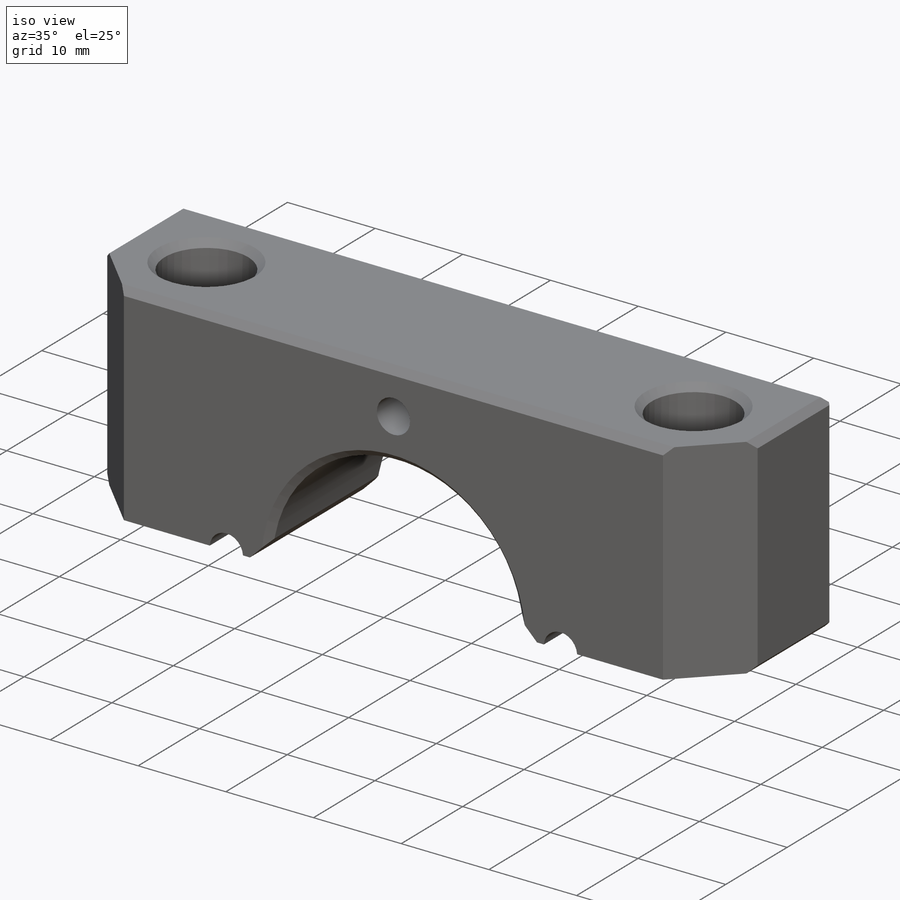
[diagram: iso view]
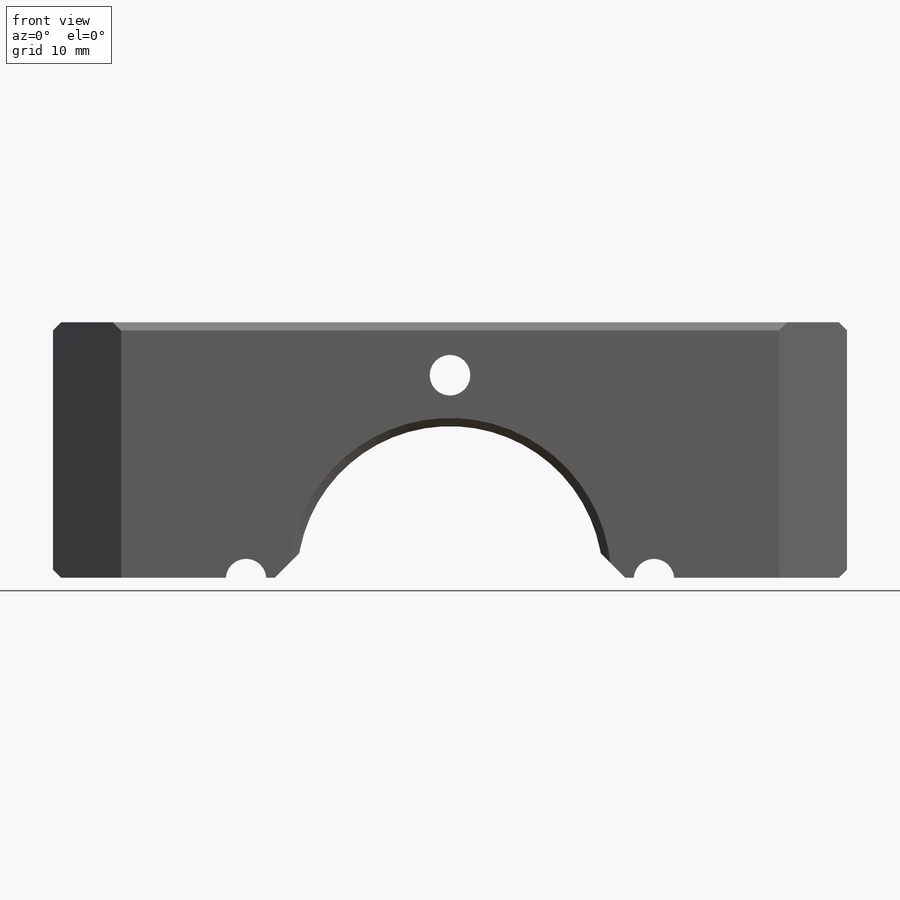
[diagram: front view]
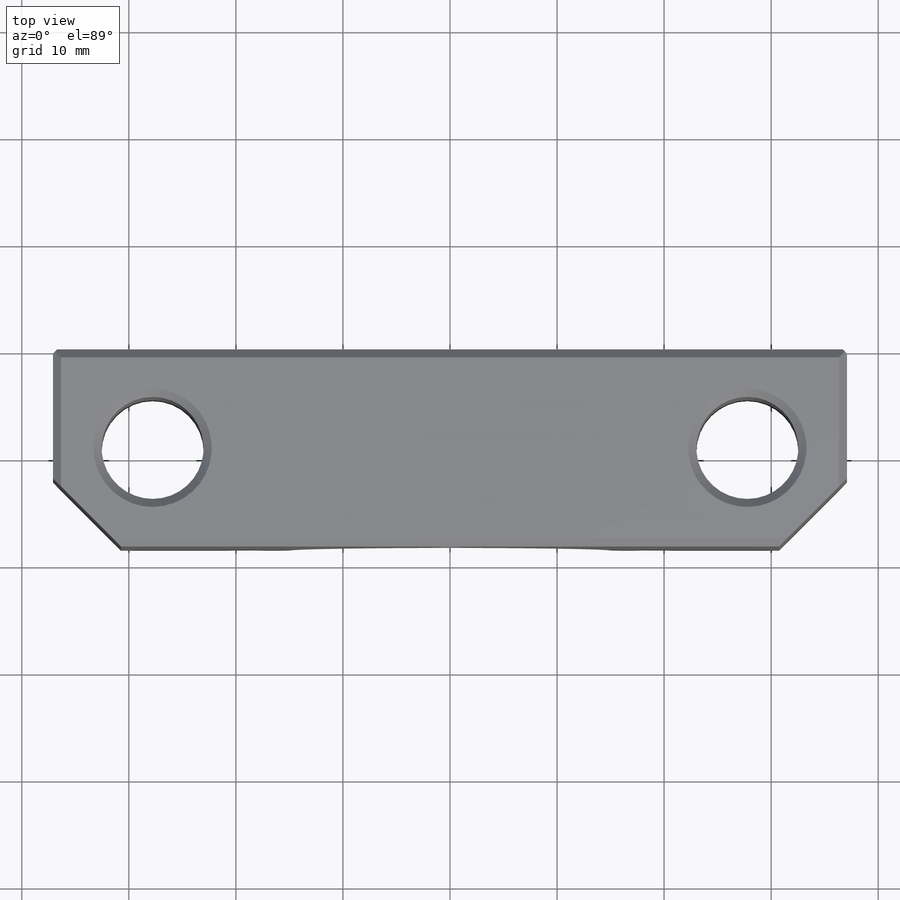
[diagram: top view]
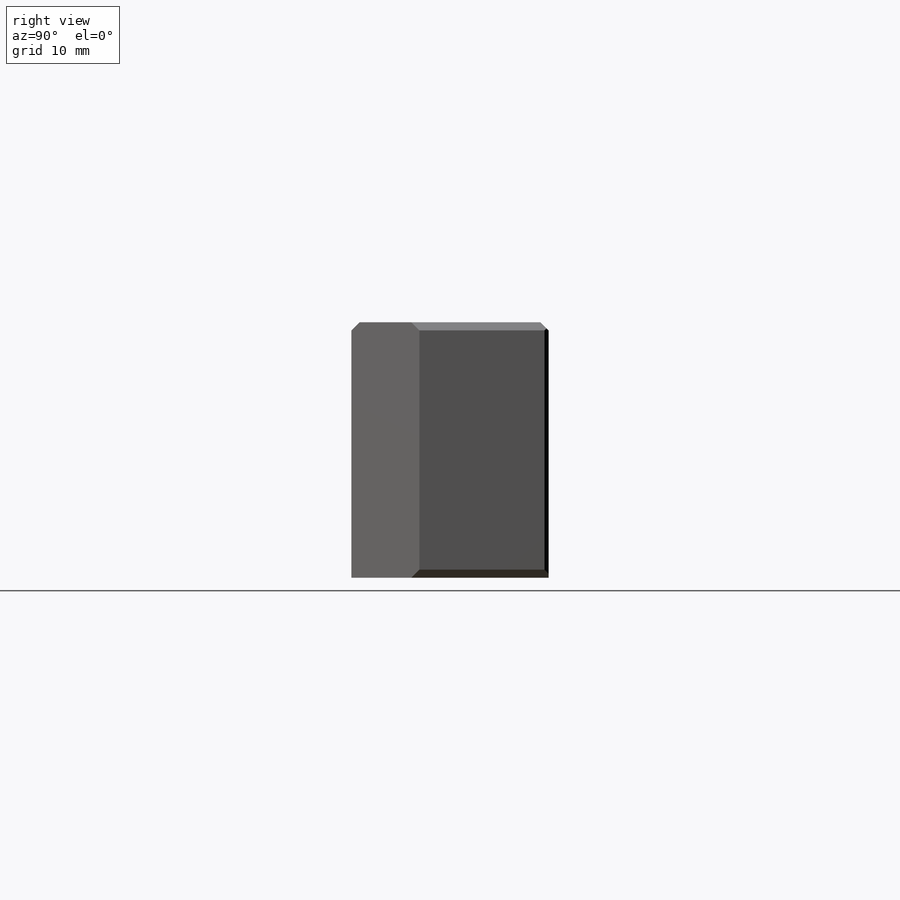
[diagram: right view]
SOLIDWORKS PART (.sldprt)
format: sldprt  version: not decoded by parser v0  size: 333,824 bytes
history: native  units: mm
features: sketch x7, chamfer x5, hole x2, cut_extrude x2, material x1, extrude x1 (+16 scaffold rows collapsed)
feature tree (34):
  scaffold x16  (default folders/planes/origin — collapsed)
  material  "2024-T351 Al"
  sketch  "Sketch1"  dims[D1=74.168mm D2=23.876mm]
  extrude  "Extrude1"  Depth=18.415mm
  hole  "3/8-16 Tapped Hole1"  Diameter=9.525mm Depth=23.876mm
  sketch  "Sketch3"  dims[c1.D1=55.5498mm c1.D2=9.2075mm c2.D1=9.2075mm]
  sketch  "Sketch2"  dims[hole-wizard template sketch: 59 standard entries collapsed; hole parameters kept: c18.Thread Major Dia.=9.525mm c18.Thru Tap Drill Depth=23.876mm]
  sketch  "Sketch4"  dims[D1=28.575mm D2=0.127mm]
  cut_extrude  "Extrude2"  [1 undecoded]
  sketch  "Sketch5"  dims[D1=2.286mm]
  cut_extrude  "Extrude3"  [1 undecoded]
  chamfer  "Chamfer2"  Distance=0.762mm Angle=45deg
  hole  "#25 (0.1495) Diameter Hole1"  Diameter=3.7973mm Depth=18.415mm
  sketch  "Sketch7"  dims[c1.D1=19.05mm c1.D2=0.127mm c1.D3=38.1mm c2.D1=19.05mm c2.D2=0.127mm]
  sketch  "Sketch6"  dims[hole-wizard template sketch: 60 standard entries collapsed; hole parameters kept: c18.Thru Hole Depth=18.415mm]
  chamfer  "Chamfer3"  Distance=0.762mm Angle=45deg
  chamfer  "Chamfer4"  Distance=6.35mm Angle=45deg
  chamfer  "Chamfer5"  Distance=0.381mm Angle=45deg
  chamfer  "Chamfer6"  Distance=0.762mm Angle=45deg
decode coverage: 15 of 17 modeling features carry decoded parameters
note: ~ marks probable driven/reference dimensions
note: 2 parameter values undecoded
note: suppression state not decoded; provenance and decode notes live in map.json
